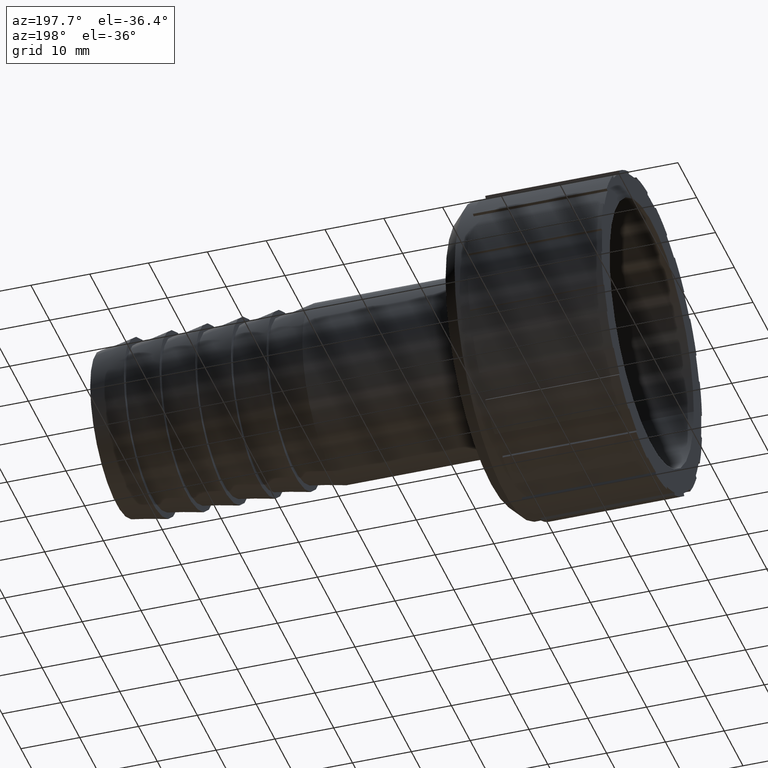
[diagram: clean part render]
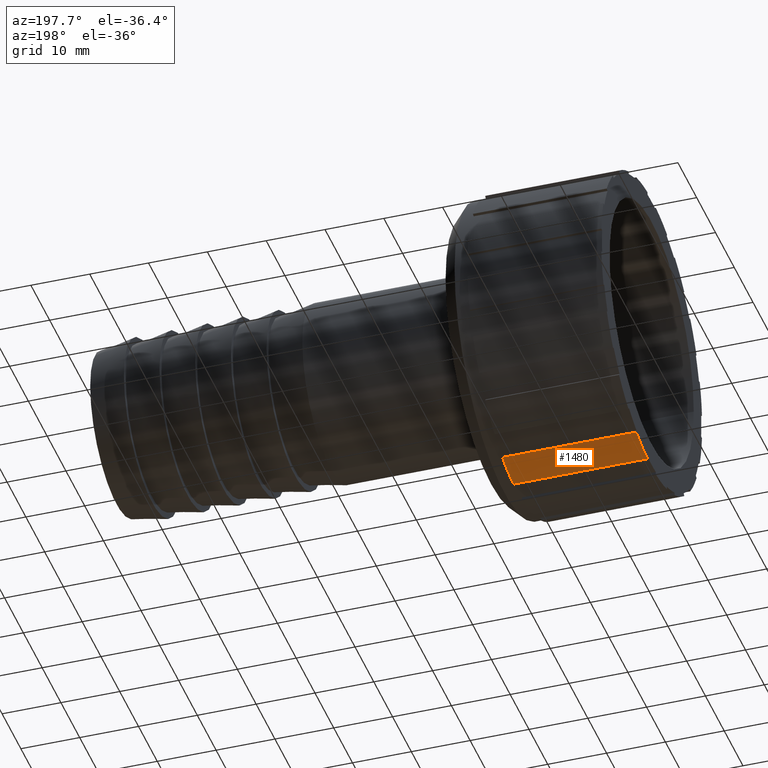
[diagram: same view with one face highlighted and labeled with its STEP entity id]
A machine part, auxiliary view. The second image highlights one B-rep face of the part: STEP entity #1480.
In plain terms, the highlighted cylindrical surface (partial cylindrical patch) has radius 26.907 mm, axis along (-1, 0, 0).
Its self-contained STEP definition (entity closure, byte-faithful):
#29=CYLINDRICAL_SURFACE('',#1631,26.907);
#79=CIRCLE('',#1560,26.907);
#109=CIRCLE('',#1598,26.907);
#199=FACE_OUTER_BOUND('',#284,.T.);
#284=EDGE_LOOP('',(#1224,#1225,#1226,#1227));
#394=LINE('',#2284,#522);
#400=LINE('',#2296,#528);
#522=VECTOR('',#1774,22.75);
#528=VECTOR('',#1782,22.75);
#649=VERTEX_POINT('',#2280);
#651=VERTEX_POINT('',#2283);
#654=VERTEX_POINT('',#2290);
#656=VERTEX_POINT('',#2294);
#797=EDGE_CURVE('',#651,#649,#394,.T.);
#803=EDGE_CURVE('',#654,#656,#400,.T.);
#875=EDGE_CURVE('',#654,#649,#79,.T.);
#906=EDGE_CURVE('',#656,#651,#109,.T.);
#1224=ORIENTED_EDGE('',*,*,#797,.T.);
#1225=ORIENTED_EDGE('',*,*,#875,.F.);
#1226=ORIENTED_EDGE('',*,*,#803,.T.);
#1227=ORIENTED_EDGE('',*,*,#906,.T.);
#1480=ADVANCED_FACE('',(#199),#29,.T.);
#1560=AXIS2_PLACEMENT_3D('',#2438,#1899,#1900);
#1598=AXIS2_PLACEMENT_3D('',#2480,#1976,#1977);
#1631=AXIS2_PLACEMENT_3D('',#2517,#2044,#2045);
#1774=DIRECTION('',(-1.,0.,0.));
#1782=DIRECTION('',(1.,0.,0.));
#1899=DIRECTION('center_axis',(-1.,0.,0.));
#1900=DIRECTION('ref_axis',(0.,0.,1.));
#1976=DIRECTION('center_axis',(-1.,0.,0.));
#1977=DIRECTION('ref_axis',(0.,0.,1.));
#2044=DIRECTION('center_axis',(-1.,0.,0.));
#2045=DIRECTION('ref_axis',(0.,-1.,0.));
#2280=CARTESIAN_POINT('',(0.,2.24225000000001,-26.8134101512191));
#2283=CARTESIAN_POINT('',(22.75,2.24225000000001,-26.8134101512191));
#2284=CARTESIAN_POINT('',(11.375,2.24225000000002,-26.8134101512191));
#2290=CARTESIAN_POINT('',(0.,8.18947894830805,-25.6304327617623));
#2294=CARTESIAN_POINT('',(22.75,8.18947894830804,-25.6304327617623));
#2296=CARTESIAN_POINT('',(11.375,8.18947894830805,-25.6304327617623));
#2438=CARTESIAN_POINT('Origin',(0.,0.,0.));
#2480=CARTESIAN_POINT('Origin',(22.75,0.,0.));
#2517=CARTESIAN_POINT('Origin',(11.375,0.,0.));